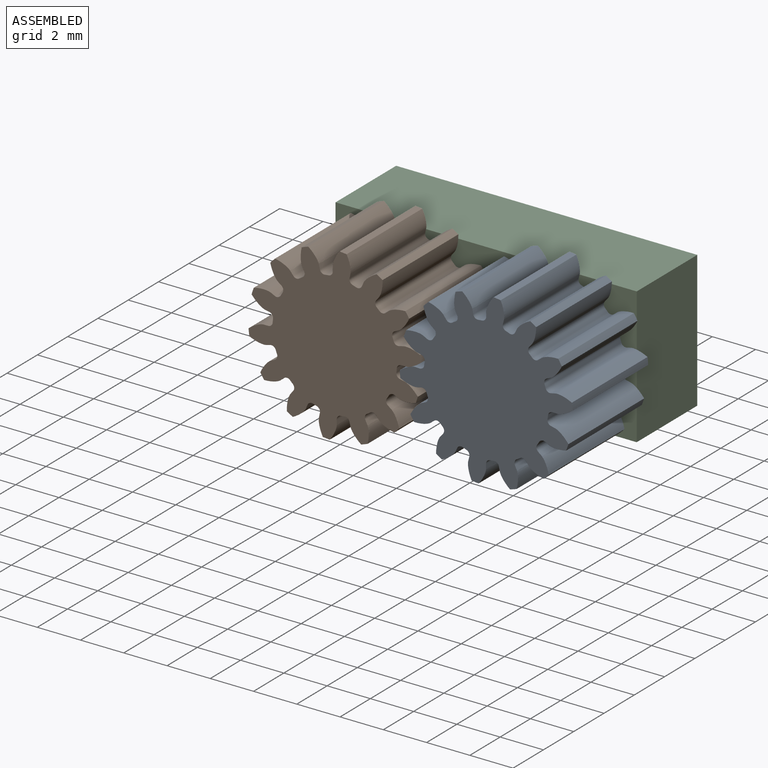
[diagram: assembled view]
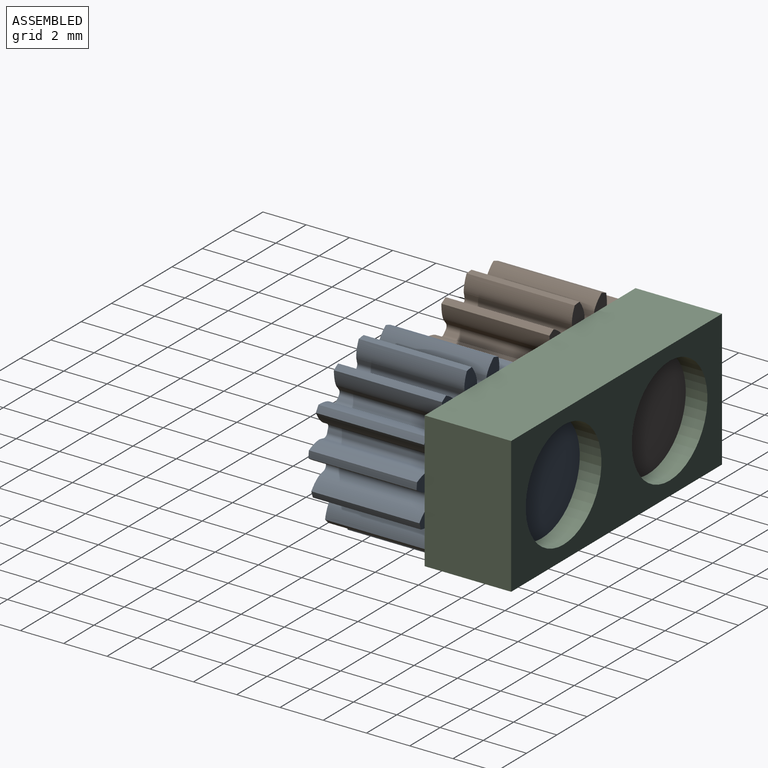
[diagram: assembled view, second angle]
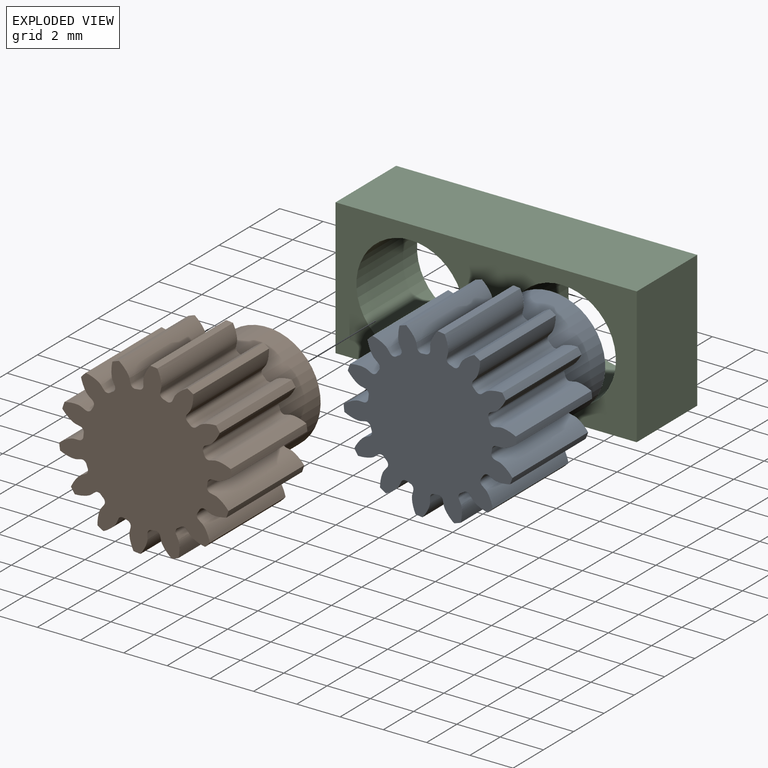
[diagram: exploded view]
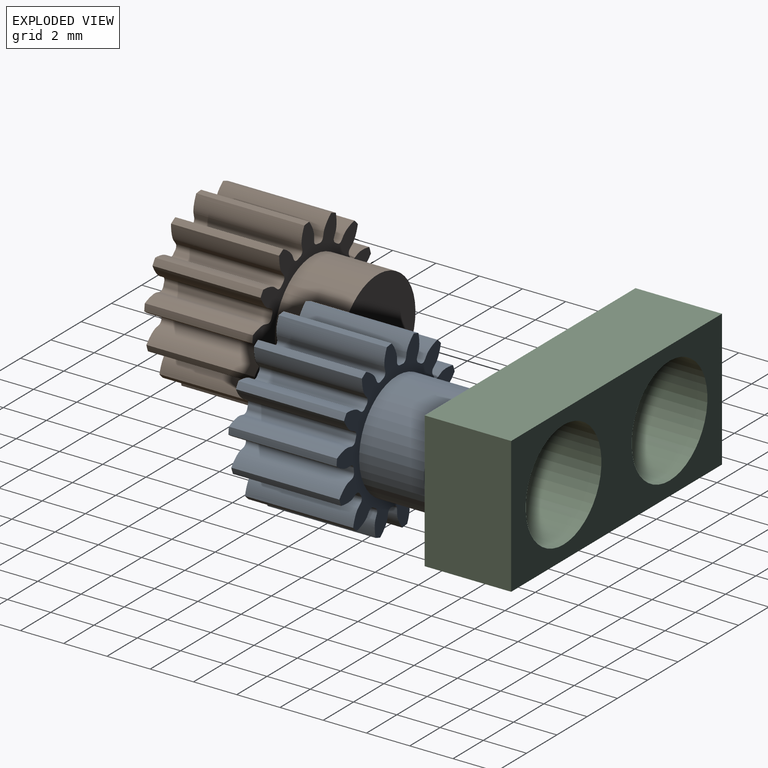
[diagram: exploded view, second angle]
ASSEMBLY  parts=3 mates=2
PART A: 88 faces, bbox 7.9x8x8 mm
  f0: cylinder r=4mm len=5mm, axis (0,1,0), area 1.6mm2, adj f13,f15,f76,f83
  f1: cylinder r=4mm len=5mm, axis (0,1,0), area 1.6mm2, adj f13,f15,f16,f78
  f2: cylinder r=4mm len=5mm, axis (0,1,0), area 1.6mm2, adj f13,f15,f73,f81
  f3: cylinder r=4mm len=5mm, axis (0,1,0), area 1.6mm2, adj f13,f15,f68,f71
  f4: cylinder r=4mm len=5mm, axis (0,1,0), area 1.6mm2, adj f13,f15,f56,f63
  f5: cylinder r=4mm len=5mm, axis (0,1,0), area 1.6mm2, adj f13,f15,f58,f66
  f6: cylinder r=4mm len=5mm, axis (0,1,0), area 1.6mm2, adj f13,f15,f53,f61
  f7: cylinder r=4mm len=5mm, axis (0,1,0), area 1.6mm2, adj f13,f15,f48,f51
  f8: cylinder r=4mm len=5mm, axis (0,1,0), area 1.6mm2, adj f13,f15,f36,f43
  f9: cylinder r=4mm len=5mm, axis (0,1,0), area 1.6mm2, adj f13,f15,f31,f38
  f10: cylinder r=4mm len=5mm, axis (0,1,0), area 1.6mm2, adj f13,f15,f26,f33
  f11: cylinder r=4mm len=5mm, axis (0,1,0), area 1.6mm2, adj f13,f15,f21,f28
  f12: cylinder r=4mm len=5mm, axis (0,1,0), area 1.6mm2, adj f13,f15,f23,f46
  f13: plane 8.01x7.88mm, normal (0,-1,0), area 37.3mm2, adj f0,f1,f2,f3,f4,f5,f6,f7
  f14: cylinder r=4mm len=5mm, axis (0,1,0), area 1.6mm2, adj f13,f15,f18,f41
  f15: plane 8.01x7.88mm, normal (0,1,0), area 17.6mm2, adj f0,f1,f2,f3,f4,f5,f6,f7
  f16: extruded ~5x0.87mm, area 5mm2, adj f1,f13,f15,f19
  f17: cylinder r=2.88mm len=5mm, axis (0,1,0), area 0.9mm2, adj f13,f15,f19,f20
  f18: extruded ~5x0.87mm, area 5mm2, adj f13,f14,f15,f20
  f19: cylinder r=0.21mm len=5mm, axis (0,1,0), area 1.6mm2, adj f13,f15,f16,f17
  f20: cylinder r=0.21mm len=5mm, axis (0,1,0), area 1.6mm2, adj f13,f15,f17,f18
  f21: extruded ~5x0.95mm, area 5mm2, adj f11,f13,f15,f24
  f22: cylinder r=2.88mm len=5mm, axis (0,1,0), area 0.9mm2, adj f13,f15,f24,f25
  f23: extruded ~5x0.88mm, area 5mm2, adj f12,f13,f15,f25
  f24: cylinder r=0.21mm len=5mm, axis (0,1,0), area 1.6mm2, adj f13,f15,f21,f22
  f25: cylinder r=0.21mm len=5mm, axis (0,1,0), area 1.6mm2, adj f13,f15,f22,f23
  f26: extruded ~5x0.95mm, area 5mm2, adj f10,f13,f15,f29
  f27: cylinder r=2.88mm len=5mm, axis (0,1,0), area 0.9mm2, adj f13,f15,f29,f30
  f28: extruded ~5x0.75mm, area 5mm2, adj f11,f13,f15,f30
  f29: cylinder r=0.21mm len=5mm, axis (0,1,0), area 1.6mm2, adj f13,f15,f26,f27
  f30: cylinder r=0.21mm len=5mm, axis (0,1,0), area 1.6mm2, adj f13,f15,f27,f28
  f31: extruded ~5x0.75mm, area 5mm2, adj f9,f13,f15,f34
  f32: cylinder r=2.88mm len=5mm, axis (0,1,0), area 0.9mm2, adj f13,f15,f34,f35
  f33: extruded ~5x0.95mm, area 5mm2, adj f10,f13,f15,f35
  f34: cylinder r=0.21mm len=5mm, axis (0,1,0), area 1.6mm2, adj f13,f15,f31,f32
  f35: cylinder r=0.21mm len=5mm, axis (0,1,0), area 1.6mm2, adj f13,f15,f32,f33
  f36: extruded ~5x0.88mm, area 5mm2, adj f8,f13,f15,f39
  f37: cylinder r=2.88mm len=5mm, axis (0,1,0), area 0.9mm2, adj f13,f15,f39,f40
  f38: extruded ~5x0.95mm, area 5mm2, adj f9,f13,f15,f40
  f39: cylinder r=0.21mm len=5mm, axis (0,1,0), area 1.6mm2, adj f13,f15,f36,f37
  f40: cylinder r=0.21mm len=5mm, axis (0,1,0), area 1.6mm2, adj f13,f15,f37,f38
  f41: extruded ~5x0.97mm, area 5mm2, adj f13,f14,f15,f44
  f42: cylinder r=2.88mm len=5mm, axis (0,1,0), area 0.9mm2, adj f13,f15,f44,f45
  f43: extruded ~5x0.77mm, area 5mm2, adj f8,f13,f15,f45
  f44: cylinder r=0.21mm len=5mm, axis (0,1,0), area 1.6mm2, adj f13,f15,f41,f42
  f45: cylinder r=0.21mm len=5mm, axis (0,1,0), area 1.6mm2, adj f13,f15,f42,f43
  f46: extruded ~5x0.77mm, area 5mm2, adj f12,f13,f15,f49
  f47: cylinder r=2.88mm len=5mm, axis (0,1,0), area 0.9mm2, adj f13,f15,f49,f50
  f48: extruded ~5x0.97mm, area 5mm2, adj f7,f13,f15,f50
  f49: cylinder r=0.21mm len=5mm, axis (0,1,0), area 1.6mm2, adj f13,f15,f46,f47
  f50: cylinder r=0.21mm len=5mm, axis (0,1,0), area 1.6mm2, adj f13,f15,f47,f48
  f51: extruded ~5x0.87mm, area 5mm2, adj f7,f13,f15,f54
  f52: cylinder r=2.88mm len=5mm, axis (0,1,0), area 0.9mm2, adj f13,f15,f54,f55
  f53: extruded ~5x0.87mm, area 5mm2, adj f6,f13,f15,f55
  f54: cylinder r=0.21mm len=5mm, axis (0,1,0), area 1.6mm2, adj f13,f15,f51,f52
  f55: cylinder r=0.21mm len=5mm, axis (0,1,0), area 1.6mm2, adj f13,f15,f52,f53
  f56: extruded ~5x0.88mm, area 5mm2, adj f4,f13,f15,f59
  f57: cylinder r=2.88mm len=5mm, axis (0,1,0), area 0.9mm2, adj f13,f15,f59,f60
  f58: extruded ~5x0.95mm, area 5mm2, adj f5,f13,f15,f60
  f59: cylinder r=0.21mm len=5mm, axis (0,1,0), area 1.6mm2, adj f13,f15,f56,f57
  f60: cylinder r=0.21mm len=5mm, axis (0,1,0), area 1.6mm2, adj f13,f15,f57,f58
  f61: extruded ~5x0.97mm, area 5mm2, adj f6,f13,f15,f64
  f62: cylinder r=2.88mm len=5mm, axis (0,1,0), area 0.9mm2, adj f13,f15,f64,f65
  f63: extruded ~5x0.77mm, area 5mm2, adj f4,f13,f15,f65
  f64: cylinder r=0.21mm len=5mm, axis (0,1,0), area 1.6mm2, adj f13,f15,f61,f62
  f65: cylinder r=0.21mm len=5mm, axis (0,1,0), area 1.6mm2, adj f13,f15,f62,f63
  f66: extruded ~5x0.75mm, area 5mm2, adj f5,f13,f15,f69
  f67: cylinder r=2.88mm len=5mm, axis (0,1,0), area 0.9mm2, adj f13,f15,f69,f70
  f68: extruded ~5x0.95mm, area 5mm2, adj f3,f13,f15,f70
  f69: cylinder r=0.21mm len=5mm, axis (0,1,0), area 1.6mm2, adj f13,f15,f66,f67
  f70: cylinder r=0.21mm len=5mm, axis (0,1,0), area 1.6mm2, adj f13,f15,f67,f68
  f71: extruded ~5x0.95mm, area 5mm2, adj f3,f13,f15,f74
  f72: cylinder r=2.88mm len=5mm, axis (0,1,0), area 0.9mm2, adj f13,f15,f74,f75
  f73: extruded ~5x0.75mm, area 5mm2, adj f2,f13,f15,f75
  f74: cylinder r=0.21mm len=5mm, axis (0,1,0), area 1.6mm2, adj f13,f15,f71,f72
  f75: cylinder r=0.21mm len=5mm, axis (0,1,0), area 1.6mm2, adj f13,f15,f72,f73
  f76: extruded ~5x0.77mm, area 5mm2, adj f0,f13,f15,f79
  f77: cylinder r=2.88mm len=5mm, axis (0,1,0), area 0.9mm2, adj f13,f15,f79,f80
  f78: extruded ~5x0.97mm, area 5mm2, adj f1,f13,f15,f80
  f79: cylinder r=0.21mm len=5mm, axis (0,1,0), area 1.6mm2, adj f13,f15,f76,f77
  f80: cylinder r=0.21mm len=5mm, axis (0,1,0), area 1.6mm2, adj f13,f15,f77,f78
  f81: extruded ~5x0.95mm, area 5mm2, adj f2,f13,f15,f84
  f82: cylinder r=2.88mm len=5mm, axis (0,1,0), area 0.9mm2, adj f13,f15,f84,f85
  f83: extruded ~5x0.88mm, area 5mm2, adj f0,f13,f15,f85
  f84: cylinder r=0.21mm len=5mm, axis (0,1,0), area 1.6mm2, adj f13,f15,f81,f82
  f85: cylinder r=0.21mm len=5mm, axis (0,1,0), area 1.6mm2, adj f13,f15,f82,f83
  f86: cylinder r=2.5mm len=5mm, axis (0,-1,0), area 47.1mm2, adj f15,f87
  f87: plane 5x5mm, normal (0,1,0), area 19.6mm2, adj f86
PART B: 88 faces, bbox 7.9x8x8 mm
  f0: cylinder r=4mm len=5mm, axis (0,1,0), area 1.6mm2, adj f13,f15,f76,f83
  f1: cylinder r=4mm len=5mm, axis (0,1,0), area 1.6mm2, adj f13,f15,f16,f78
  f2: cylinder r=4mm len=5mm, axis (0,1,0), area 1.6mm2, adj f13,f15,f73,f81
  f3: cylinder r=4mm len=5mm, axis (0,1,0), area 1.6mm2, adj f13,f15,f68,f71
  f4: cylinder r=4mm len=5mm, axis (0,1,0), area 1.6mm2, adj f13,f15,f56,f63
  f5: cylinder r=4mm len=5mm, axis (0,1,0), area 1.6mm2, adj f13,f15,f58,f66
  f6: cylinder r=4mm len=5mm, axis (0,1,0), area 1.6mm2, adj f13,f15,f53,f61
  f7: cylinder r=4mm len=5mm, axis (0,1,0), area 1.6mm2, adj f13,f15,f48,f51
  f8: cylinder r=4mm len=5mm, axis (0,1,0), area 1.6mm2, adj f13,f15,f36,f43
  f9: cylinder r=4mm len=5mm, axis (0,1,0), area 1.6mm2, adj f13,f15,f31,f38
  f10: cylinder r=4mm len=5mm, axis (0,1,0), area 1.6mm2, adj f13,f15,f26,f33
  f11: cylinder r=4mm len=5mm, axis (0,1,0), area 1.6mm2, adj f13,f15,f21,f28
  f12: cylinder r=4mm len=5mm, axis (0,1,0), area 1.6mm2, adj f13,f15,f23,f46
  f13: plane 8.01x7.88mm, normal (0,-1,0), area 37.3mm2, adj f0,f1,f2,f3,f4,f5,f6,f7
  f14: cylinder r=4mm len=5mm, axis (0,1,0), area 1.6mm2, adj f13,f15,f18,f41
  f15: plane 8.01x7.88mm, normal (0,1,0), area 17.6mm2, adj f0,f1,f2,f3,f4,f5,f6,f7
  f16: extruded ~5x0.87mm, area 5mm2, adj f1,f13,f15,f19
  f17: cylinder r=2.88mm len=5mm, axis (0,1,0), area 0.9mm2, adj f13,f15,f19,f20
  f18: extruded ~5x0.87mm, area 5mm2, adj f13,f14,f15,f20
  f19: cylinder r=0.21mm len=5mm, axis (0,1,0), area 1.6mm2, adj f13,f15,f16,f17
  f20: cylinder r=0.21mm len=5mm, axis (0,1,0), area 1.6mm2, adj f13,f15,f17,f18
  f21: extruded ~5x0.95mm, area 5mm2, adj f11,f13,f15,f24
  f22: cylinder r=2.88mm len=5mm, axis (0,1,0), area 0.9mm2, adj f13,f15,f24,f25
  f23: extruded ~5x0.88mm, area 5mm2, adj f12,f13,f15,f25
  f24: cylinder r=0.21mm len=5mm, axis (0,1,0), area 1.6mm2, adj f13,f15,f21,f22
  f25: cylinder r=0.21mm len=5mm, axis (0,1,0), area 1.6mm2, adj f13,f15,f22,f23
  f26: extruded ~5x0.95mm, area 5mm2, adj f10,f13,f15,f29
  f27: cylinder r=2.88mm len=5mm, axis (0,1,0), area 0.9mm2, adj f13,f15,f29,f30
  f28: extruded ~5x0.75mm, area 5mm2, adj f11,f13,f15,f30
  f29: cylinder r=0.21mm len=5mm, axis (0,1,0), area 1.6mm2, adj f13,f15,f26,f27
  f30: cylinder r=0.21mm len=5mm, axis (0,1,0), area 1.6mm2, adj f13,f15,f27,f28
  f31: extruded ~5x0.75mm, area 5mm2, adj f9,f13,f15,f34
  f32: cylinder r=2.88mm len=5mm, axis (0,1,0), area 0.9mm2, adj f13,f15,f34,f35
  f33: extruded ~5x0.95mm, area 5mm2, adj f10,f13,f15,f35
  f34: cylinder r=0.21mm len=5mm, axis (0,1,0), area 1.6mm2, adj f13,f15,f31,f32
  f35: cylinder r=0.21mm len=5mm, axis (0,1,0), area 1.6mm2, adj f13,f15,f32,f33
  f36: extruded ~5x0.88mm, area 5mm2, adj f8,f13,f15,f39
  f37: cylinder r=2.88mm len=5mm, axis (0,1,0), area 0.9mm2, adj f13,f15,f39,f40
  f38: extruded ~5x0.95mm, area 5mm2, adj f9,f13,f15,f40
  f39: cylinder r=0.21mm len=5mm, axis (0,1,0), area 1.6mm2, adj f13,f15,f36,f37
  f40: cylinder r=0.21mm len=5mm, axis (0,1,0), area 1.6mm2, adj f13,f15,f37,f38
  f41: extruded ~5x0.97mm, area 5mm2, adj f13,f14,f15,f44
  f42: cylinder r=2.88mm len=5mm, axis (0,1,0), area 0.9mm2, adj f13,f15,f44,f45
  f43: extruded ~5x0.77mm, area 5mm2, adj f8,f13,f15,f45
  f44: cylinder r=0.21mm len=5mm, axis (0,1,0), area 1.6mm2, adj f13,f15,f41,f42
  f45: cylinder r=0.21mm len=5mm, axis (0,1,0), area 1.6mm2, adj f13,f15,f42,f43
  f46: extruded ~5x0.77mm, area 5mm2, adj f12,f13,f15,f49
  f47: cylinder r=2.88mm len=5mm, axis (0,1,0), area 0.9mm2, adj f13,f15,f49,f50
  f48: extruded ~5x0.97mm, area 5mm2, adj f7,f13,f15,f50
  f49: cylinder r=0.21mm len=5mm, axis (0,1,0), area 1.6mm2, adj f13,f15,f46,f47
  f50: cylinder r=0.21mm len=5mm, axis (0,1,0), area 1.6mm2, adj f13,f15,f47,f48
  f51: extruded ~5x0.87mm, area 5mm2, adj f7,f13,f15,f54
  f52: cylinder r=2.88mm len=5mm, axis (0,1,0), area 0.9mm2, adj f13,f15,f54,f55
  f53: extruded ~5x0.87mm, area 5mm2, adj f6,f13,f15,f55
  f54: cylinder r=0.21mm len=5mm, axis (0,1,0), area 1.6mm2, adj f13,f15,f51,f52
  f55: cylinder r=0.21mm len=5mm, axis (0,1,0), area 1.6mm2, adj f13,f15,f52,f53
  f56: extruded ~5x0.88mm, area 5mm2, adj f4,f13,f15,f59
  f57: cylinder r=2.88mm len=5mm, axis (0,1,0), area 0.9mm2, adj f13,f15,f59,f60
  f58: extruded ~5x0.95mm, area 5mm2, adj f5,f13,f15,f60
  f59: cylinder r=0.21mm len=5mm, axis (0,1,0), area 1.6mm2, adj f13,f15,f56,f57
  f60: cylinder r=0.21mm len=5mm, axis (0,1,0), area 1.6mm2, adj f13,f15,f57,f58
  f61: extruded ~5x0.97mm, area 5mm2, adj f6,f13,f15,f64
  f62: cylinder r=2.88mm len=5mm, axis (0,1,0), area 0.9mm2, adj f13,f15,f64,f65
  f63: extruded ~5x0.77mm, area 5mm2, adj f4,f13,f15,f65
  f64: cylinder r=0.21mm len=5mm, axis (0,1,0), area 1.6mm2, adj f13,f15,f61,f62
  f65: cylinder r=0.21mm len=5mm, axis (0,1,0), area 1.6mm2, adj f13,f15,f62,f63
  f66: extruded ~5x0.75mm, area 5mm2, adj f5,f13,f15,f69
  f67: cylinder r=2.88mm len=5mm, axis (0,1,0), area 0.9mm2, adj f13,f15,f69,f70
  f68: extruded ~5x0.95mm, area 5mm2, adj f3,f13,f15,f70
  f69: cylinder r=0.21mm len=5mm, axis (0,1,0), area 1.6mm2, adj f13,f15,f66,f67
  f70: cylinder r=0.21mm len=5mm, axis (0,1,0), area 1.6mm2, adj f13,f15,f67,f68
  f71: extruded ~5x0.95mm, area 5mm2, adj f3,f13,f15,f74
  f72: cylinder r=2.88mm len=5mm, axis (0,1,0), area 0.9mm2, adj f13,f15,f74,f75
  f73: extruded ~5x0.75mm, area 5mm2, adj f2,f13,f15,f75
  f74: cylinder r=0.21mm len=5mm, axis (0,1,0), area 1.6mm2, adj f13,f15,f71,f72
  f75: cylinder r=0.21mm len=5mm, axis (0,1,0), area 1.6mm2, adj f13,f15,f72,f73
  f76: extruded ~5x0.77mm, area 5mm2, adj f0,f13,f15,f79
  f77: cylinder r=2.88mm len=5mm, axis (0,1,0), area 0.9mm2, adj f13,f15,f79,f80
  f78: extruded ~5x0.97mm, area 5mm2, adj f1,f13,f15,f80
  f79: cylinder r=0.21mm len=5mm, axis (0,1,0), area 1.6mm2, adj f13,f15,f76,f77
  f80: cylinder r=0.21mm len=5mm, axis (0,1,0), area 1.6mm2, adj f13,f15,f77,f78
  f81: extruded ~5x0.95mm, area 5mm2, adj f2,f13,f15,f84
  f82: cylinder r=2.88mm len=5mm, axis (0,1,0), area 0.9mm2, adj f13,f15,f84,f85
  f83: extruded ~5x0.88mm, area 5mm2, adj f0,f13,f15,f85
  f84: cylinder r=0.21mm len=5mm, axis (0,1,0), area 1.6mm2, adj f13,f15,f81,f82
  f85: cylinder r=0.21mm len=5mm, axis (0,1,0), area 1.6mm2, adj f13,f15,f82,f83
  f86: plane 5x5mm, normal (0,1,0), area 19.6mm2, adj f87
  f87: cylinder r=2.5mm len=5mm, axis (0,-1,0), area 47.1mm2, adj f15,f86
PART C: 8 faces, bbox 13.9x4x6.3 mm
  f0: plane 13.92x4mm, normal (0,0,1), area 55.7mm2, adj f1,f4,f6,f7
  f1: plane 6.3x4mm, normal (1,0,0), area 25.2mm2, adj f0,f2,f6,f7
  f2: plane 13.92x4mm, normal (0,0,-1), area 55.7mm2, adj f1,f4,f6,f7
  f3: cylinder r=2.5mm len=5mm, axis (0,-1,0), area 62.8mm2, adj f6,f7
  f4: plane 6.3x4mm, normal (-1,0,0), area 25.2mm2, adj f0,f2,f6,f7
  f5: cylinder r=2.5mm len=5mm, axis (0,-1,0), area 62.8mm2, adj f6,f7
  f6: plane 13.92x6.3mm, normal (0,1,0), area 48.5mm2, adj f0,f1,f2,f3,f4,f5
  f7: plane 13.92x6.3mm, normal (0,-1,0), area 48.5mm2, adj f0,f1,f2,f3,f4,f5
PLACE A rot(axis=(0,1,0),58.8deg) t=(5.39,0.62,3.17)mm
PLACE B rot(axis=(0,-1,0),97.3deg) t=(2.02,0.62,-2.82)mm
PLACE C t=(2.02,0.62,-2.82)mm fixed
MATE revolute B.f87 <-> C.f5  axis (0,-1,0) through (2.02,0.62,-2.82)mm
MATE revolute A.f86 <-> C.f3  axis (0,1,0) through (9.02,0.62,-2.82)mm
